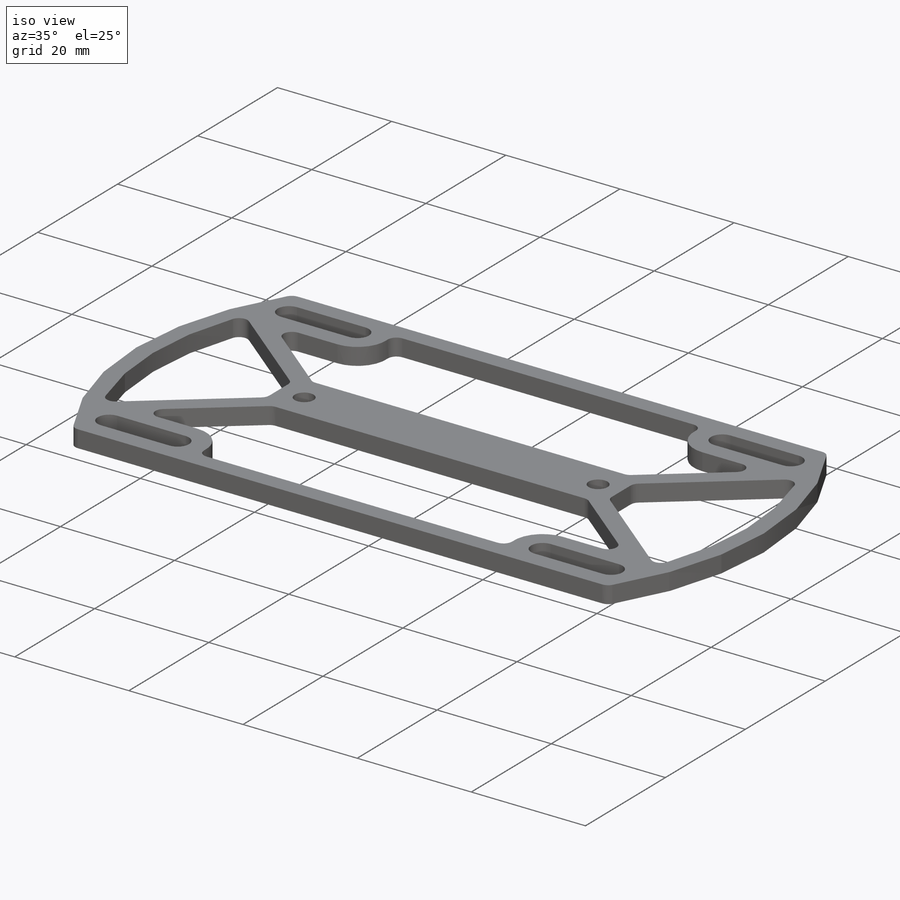
[diagram: iso view]
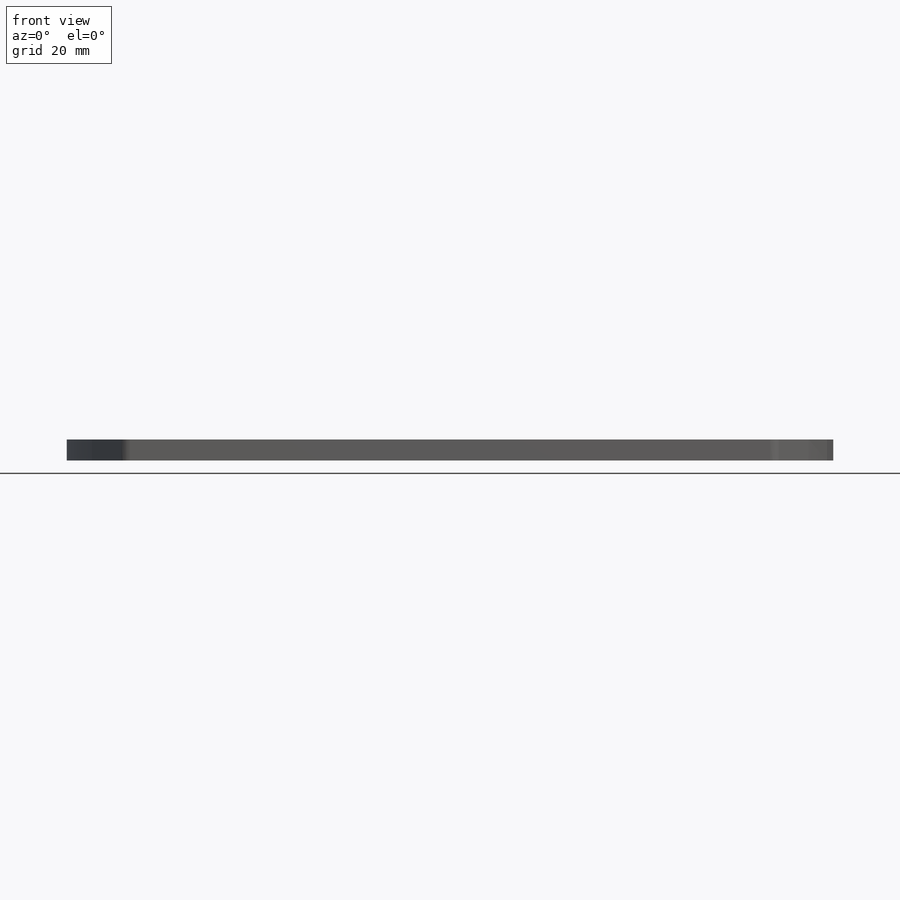
[diagram: front view]
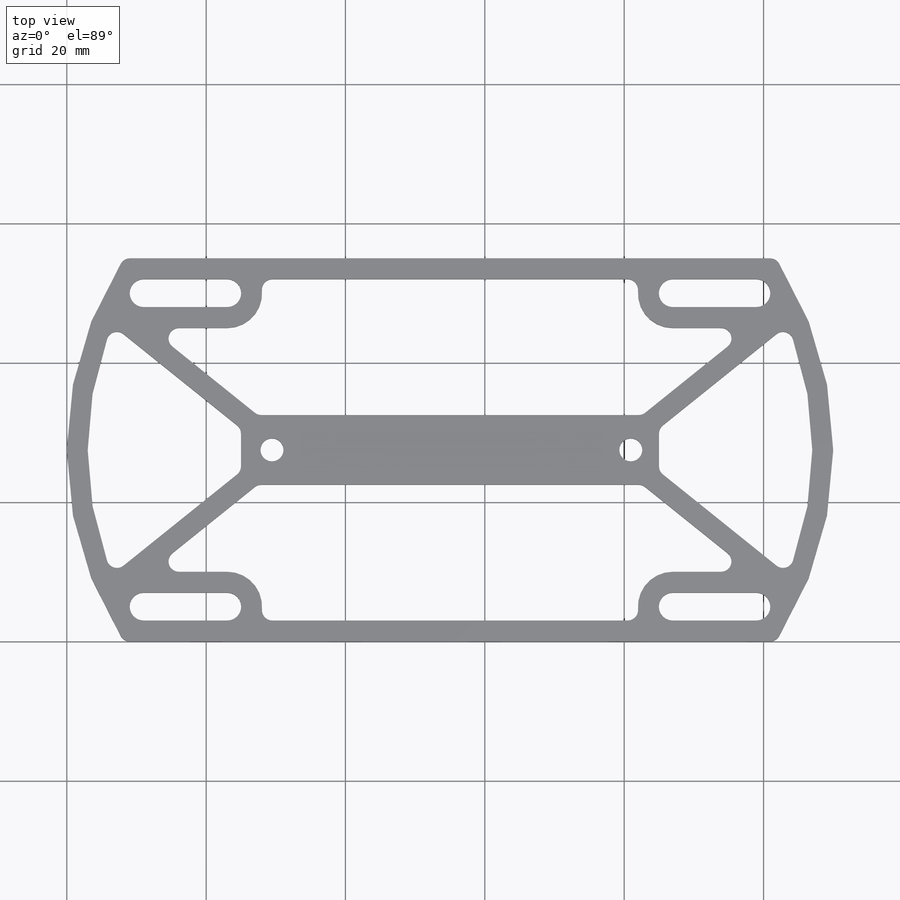
[diagram: top view]
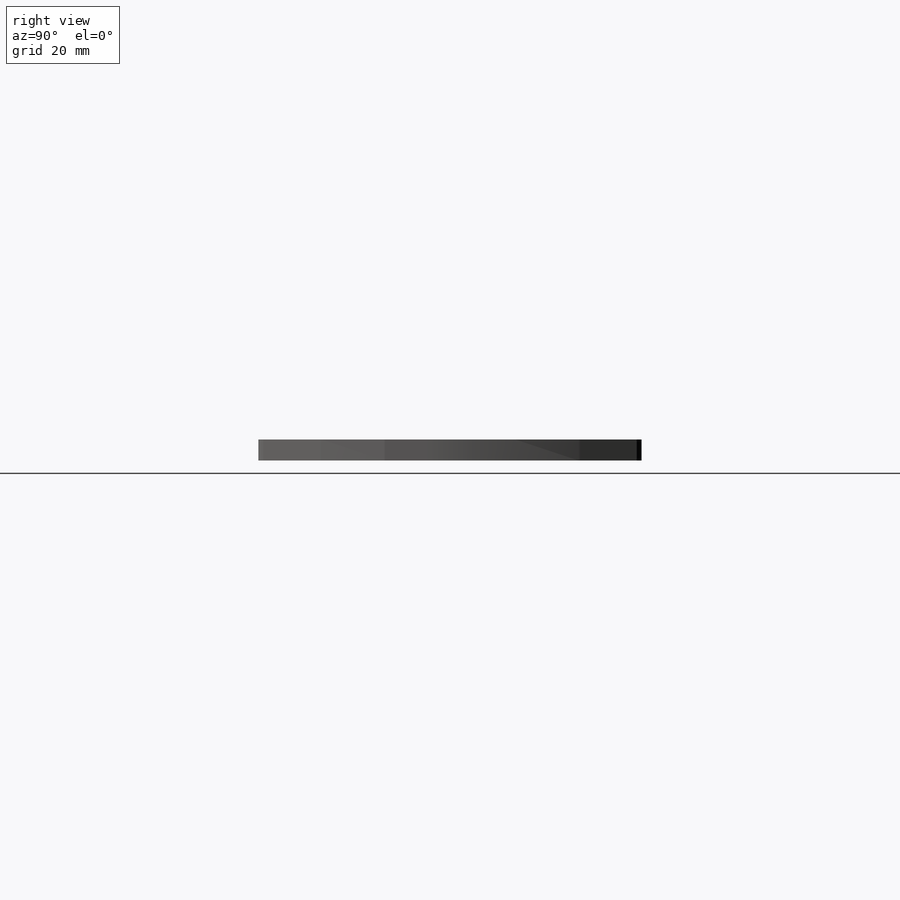
[diagram: right view]
SOLIDWORKS PART (.sldprt)
format: sldprt  version: not decoded by parser v0  size: 817,664 bytes
history: native  units: mm
features: sketch x6, extrude x4, fillet x2, thread x2, material x1, hole x1 (+11 scaffold rows collapsed)
feature tree (27):
  scaffold x11  (default folders/planes/origin — collapsed)
  material  "3.1355 (EN-AW 2024)"
  sketch  "Эскиз1"  dims[c1.D4=50.0mm c1.D5=100.0mm c1.D6=50.0mm c1.D1=55.0mm c1.D2=110.0mm c2.D5=60.0mm c2.D3=3.0mm]
  extrude  "Бобышка-Вытянуть1"  Depth=3mm
  sketch  "Эскиз3"  dims[D1=10.0mm D2=60.0mm]
  extrude  "Бобышка-Вытянуть3"  [1 undecoded]
  sketch  "Эскиз4"  dims[D1=2.0mm D2=12.0mm D3=3.0mm]
  extrude  "Бобышка-Вытянуть4"  [1 undecoded]
  sketch  "Эскиз5"  dims[D1=1.5mm D2=1.5mm D3=0.0mm]
  extrude  "Бобышка-Вытянуть5"  [1 undecoded]
  fillet  "Скругление1"  Radius=1.5mm
  fillet  "Скругление2"  Radius=1.5mm
  hole  "Отверстие обработанное метчиком M4x0.71"  [1 undecoded]
  sketch  "Эскиз6"
  sketch  "Эскиз7"  dims[Диаметр проходного сверла=3.3mm Глубина проходного сверла=3.0mm]
  thread  "Отверстие резьбы1"  Diameter=4mm  [1 undecoded]
  thread  "Отверстие резьбы2"  Diameter=4mm  [1 undecoded]
decode coverage: 10 of 15 modeling features carry decoded parameters
note: 6 parameter values undecoded
summary: no parameter record found for 4 features
note: suppression state not decoded; provenance and decode notes live in map.json
